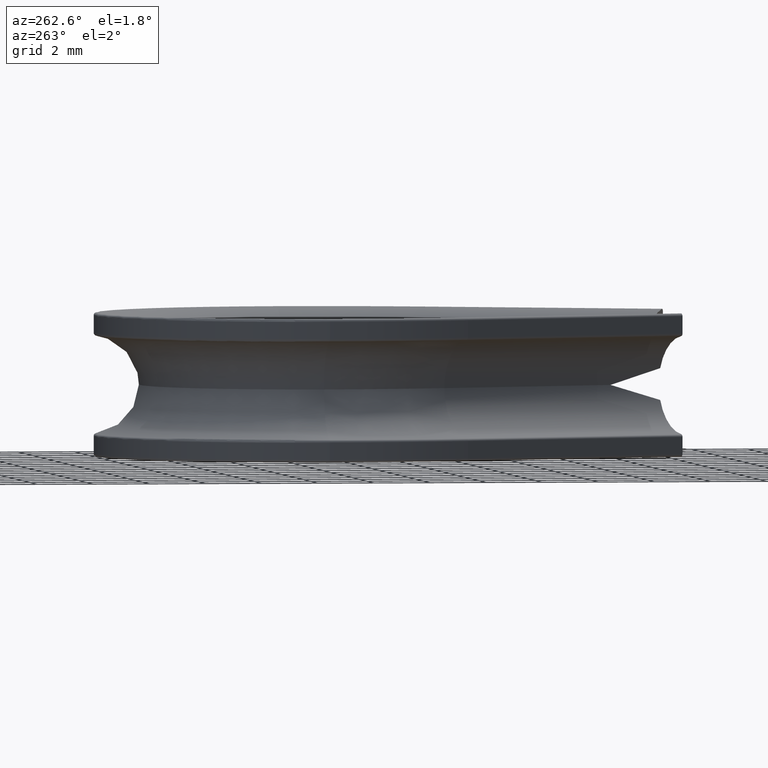
[diagram: clean part render]
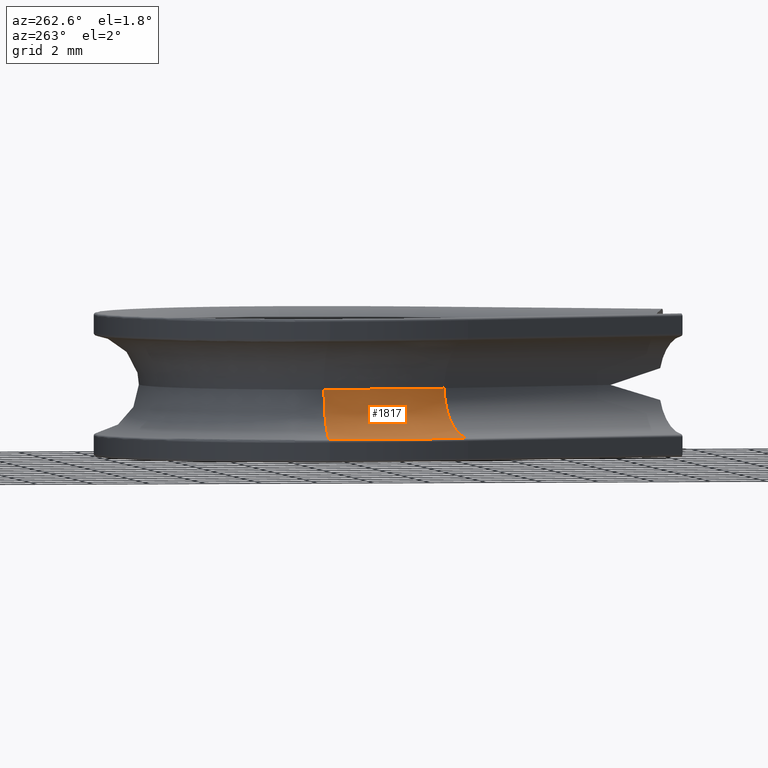
[diagram: same view with one face highlighted and labeled with its STEP entity id]
A machine part, auxiliary view. The second image highlights one B-rep face of the part: STEP entity #1817.
In plain terms, the highlighted toroidal blend (fillet) surface has major radius 12.55 mm and minor (blend) radius 1.75 mm.
Its self-contained STEP definition (entity closure, byte-faithful):
#723 = VERTEX_POINT ( 'NONE', #869 ) ;
#869 = CARTESIAN_POINT ( 'NONE',  ( -7.313513513512511100, 12.19999999999999900, -1.733947560253281700 ) ) ;
#884 = CARTESIAN_POINT ( 'NONE',  ( -6.241450693962661100, 7.174823252596383800, -1.733947560253105600 ) ) ;
#1132 = CIRCLE ( 'NONE', #12901, 12.31351351351357300 ) ;
#1201 = DIRECTION ( 'NONE',  ( 1.000000000000000000, 0.0000000000000000000, 0.0000000000000000000 ) ) ;
#1330 = VERTEX_POINT ( 'NONE', #884 ) ;
#1514 = CARTESIAN_POINT ( 'NONE',  ( 5.000000000000000900, 12.19999999999999900, -1.733947560253105800 ) ) ;
#1817 = ADVANCED_FACE ( 'NONE', ( #8628 ), #8250, .F. ) ;
#2438 = DIRECTION ( 'NONE',  ( 1.000000000000000000, 0.0000000000000000000, 0.0000000000000000000 ) ) ;
#2782 = DIRECTION ( 'NONE',  ( -0.0000000000000000000, 0.0000000000000000000, 1.000000000000000000 ) ) ;
#3308 = EDGE_CURVE ( 'NONE', #723, #11718, #12507, .T. ) ;
#3480 = AXIS2_PLACEMENT_3D ( 'NONE', #14419, #14368, #2438 ) ;
#4128 = CARTESIAN_POINT ( 'NONE',  ( -4.859709607787703300, 7.792492036297733900, 0.0000000000000000000 ) ) ;
#4161 = CARTESIAN_POINT ( 'NONE',  ( -5.800000000000001600, 12.19999999999999900, -2.143131898507868500E-016 ) ) ;
#4180 = ORIENTED_EDGE ( 'NONE', *, *, #3308, .F. ) ;
#4844 = DIRECTION ( 'NONE',  ( -0.0000000000000000000, 0.0000000000000000000, 1.000000000000000000 ) ) ;
#4935 = DIRECTION ( 'NONE',  ( 0.0000000000000000000, 0.0000000000000000000, -1.000000000000000000 ) ) ;
#6052 = EDGE_CURVE ( 'NONE', #723, #1330, #1132, .T. ) ;
#6589 = CARTESIAN_POINT ( 'NONE',  ( -6.457347738679229300, 7.078312505142274200, 0.0000000000000000000 ) ) ;
#6934 = CIRCLE ( 'NONE', #14514, 10.80000000000000100 ) ;
#7261 = EDGE_CURVE ( 'NONE', #1330, #14989, #7263, .T. ) ;
#7263 = CIRCLE ( 'NONE', #10455, 1.750000000000000000 ) ;
#7686 = EDGE_LOOP ( 'NONE', ( #8766, #4180, #12228, #15017 ) ) ;
#7832 = DIRECTION ( 'NONE',  ( 0.4081025892316913500, -0.9129360747951577000, 0.0000000000000000000 ) ) ;
#7988 = DIRECTION ( 'NONE',  ( 0.0000000000000000000, 0.0000000000000000000, -1.000000000000000000 ) ) ;
#8250 = TOROIDAL_SURFACE ( 'NONE', #3480, 12.55000000000000200, 1.750000000000000000 ) ;
#8474 = CARTESIAN_POINT ( 'NONE',  ( 5.000000000000000900, 12.19999999999999900, -2.143131898507868300E-016 ) ) ;
#8628 = FACE_OUTER_BOUND ( 'NONE', #7686, .T. ) ;
#8766 = ORIENTED_EDGE ( 'NONE', *, *, #12378, .F. ) ;
#10455 = AXIS2_PLACEMENT_3D ( 'NONE', #6589, #7832, #7988 ) ;
#10963 = CARTESIAN_POINT ( 'NONE',  ( -7.550000000000000700, 12.19999999999999900, 0.0000000000000000000 ) ) ;
#11718 = VERTEX_POINT ( 'NONE', #4161 ) ;
#12228 = ORIENTED_EDGE ( 'NONE', *, *, #6052, .T. ) ;
#12286 = DIRECTION ( 'NONE',  ( 1.608122649676636600E-016, -1.000000000000000000, 0.0000000000000000000 ) ) ;
#12378 = EDGE_CURVE ( 'NONE', #11718, #14989, #6934, .T. ) ;
#12507 = CIRCLE ( 'NONE', #14465, 1.750000000000000000 ) ;
#12901 = AXIS2_PLACEMENT_3D ( 'NONE', #1514, #2782, #15013 ) ;
#14368 = DIRECTION ( 'NONE',  ( -0.0000000000000000000, 0.0000000000000000000, 1.000000000000000000 ) ) ;
#14419 = CARTESIAN_POINT ( 'NONE',  ( 5.000000000000000900, 12.19999999999999900, 0.0000000000000000000 ) ) ;
#14465 = AXIS2_PLACEMENT_3D ( 'NONE', #10963, #12286, #4935 ) ;
#14514 = AXIS2_PLACEMENT_3D ( 'NONE', #8474, #4844, #1201 ) ;
#14989 = VERTEX_POINT ( 'NONE', #4128 ) ;
#15013 = DIRECTION ( 'NONE',  ( 1.000000000000000000, 0.0000000000000000000, 0.0000000000000000000 ) ) ;
#15017 = ORIENTED_EDGE ( 'NONE', *, *, #7261, .T. ) ;